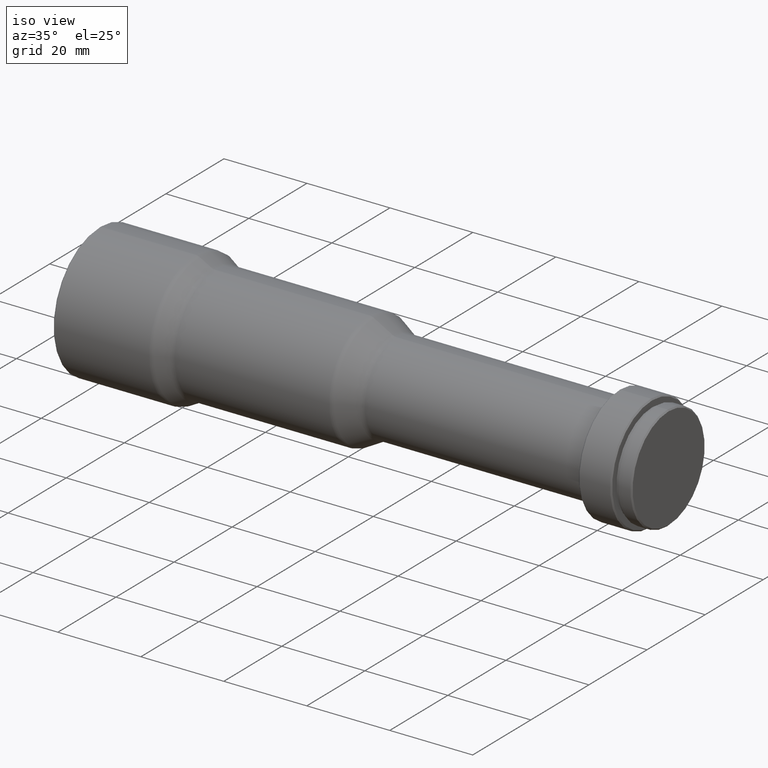
[diagram: clean part render]
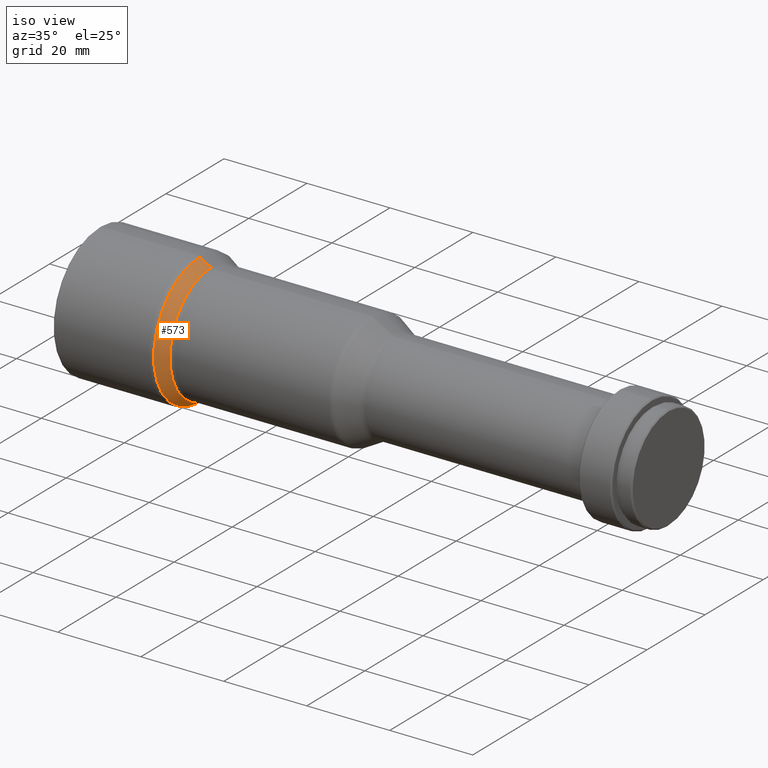
[diagram: same view with one face highlighted and labeled with its STEP entity id]
A machine part, iso view. The second image highlights one B-rep face of the part: STEP entity #573.
In plain terms, the highlighted conical surface has half-angle 28.393 deg.
Its self-contained STEP definition (entity closure, byte-faithful):
#5 = VECTOR ( 'NONE', #205, 1000.000000000000100 ) ;
#16 = DIRECTION ( 'NONE',  ( -1.000000000000000000, -0.0000000000000000000, -0.0000000000000000000 ) ) ;
#72 = LINE ( 'NONE', #634, #5 ) ;
#131 = AXIS2_PLACEMENT_3D ( 'NONE', #428, #330, #606 ) ;
#160 = DIRECTION ( 'NONE',  ( 0.0000000000000000000, 0.0000000000000000000, 1.000000000000000000 ) ) ;
#205 = DIRECTION ( 'NONE',  ( -0.8797065135761267300, 0.0000000000000000000, 0.4755170343654744900 ) ) ;
#250 = FACE_OUTER_BOUND ( 'NONE', #783, .T. ) ;
#274 = VECTOR ( 'NONE', #519, 1000.000000000000100 ) ;
#327 = CARTESIAN_POINT ( 'NONE',  ( 26.95491410023165800, 0.0000000000000000000, 0.0000000000000000000 ) ) ;
#329 = ORIENTED_EDGE ( 'NONE', *, *, #1021, .T. ) ;
#330 = DIRECTION ( 'NONE',  ( -1.000000000000000000, -0.0000000000000000000, -0.0000000000000000000 ) ) ;
#345 = EDGE_CURVE ( 'NONE', #371, #393, #708, .T. ) ;
#371 = VERTEX_POINT ( 'NONE', #926 ) ;
#393 = VERTEX_POINT ( 'NONE', #420 ) ;
#414 = CONICAL_SURFACE ( 'NONE', #131, 14.24058697284775100, 0.4955516734858291300 ) ;
#420 = CARTESIAN_POINT ( 'NONE',  ( 24.14508589976833600, 1.929971472014310800E-015, -15.75941302715225200 ) ) ;
#428 = CARTESIAN_POINT ( 'NONE',  ( 26.95491410023165800, 0.0000000000000000000, 0.0000000000000000000 ) ) ;
#470 = EDGE_CURVE ( 'NONE', #720, #782, #72, .T. ) ;
#505 = ORIENTED_EDGE ( 'NONE', *, *, #470, .T. ) ;
#508 = AXIS2_PLACEMENT_3D ( 'NONE', #838, #16, #1033 ) ;
#519 = DIRECTION ( 'NONE',  ( -0.8797065135761267300, 5.823404140757203100E-017, -0.4755170343654744900 ) ) ;
#573 = ADVANCED_FACE ( 'NONE', ( #250 ), #414, .T. ) ;
#598 = DIRECTION ( 'NONE',  ( -1.000000000000000000, -0.0000000000000000000, -0.0000000000000000000 ) ) ;
#606 = DIRECTION ( 'NONE',  ( 0.0000000000000000000, 0.0000000000000000000, 1.000000000000000000 ) ) ;
#634 = CARTESIAN_POINT ( 'NONE',  ( 26.95491410023165800, 0.0000000000000000000, 14.24058697284775100 ) ) ;
#648 = CIRCLE ( 'NONE', #508, 15.75941302715225200 ) ;
#705 = CIRCLE ( 'NONE', #747, 14.24058697284775100 ) ;
#708 = LINE ( 'NONE', #848, #274 ) ;
#720 = VERTEX_POINT ( 'NONE', #786 ) ;
#747 = AXIS2_PLACEMENT_3D ( 'NONE', #327, #598, #160 ) ;
#782 = VERTEX_POINT ( 'NONE', #792 ) ;
#783 = EDGE_LOOP ( 'NONE', ( #794, #329, #505, #918 ) ) ;
#786 = CARTESIAN_POINT ( 'NONE',  ( 26.95491410023165800, 0.0000000000000000000, 14.24058697284775100 ) ) ;
#792 = CARTESIAN_POINT ( 'NONE',  ( 24.14508589976833600, 0.0000000000000000000, 15.75941302715225200 ) ) ;
#794 = ORIENTED_EDGE ( 'NONE', *, *, #345, .F. ) ;
#838 = CARTESIAN_POINT ( 'NONE',  ( 24.14508589976833600, 0.0000000000000000000, 0.0000000000000000000 ) ) ;
#848 = CARTESIAN_POINT ( 'NONE',  ( 26.95491410023165800, 1.743968925427749400E-015, -14.24058697284775100 ) ) ;
#918 = ORIENTED_EDGE ( 'NONE', *, *, #1025, .F. ) ;
#926 = CARTESIAN_POINT ( 'NONE',  ( 26.95491410023165800, 1.743968925427749400E-015, -14.24058697284775100 ) ) ;
#1021 = EDGE_CURVE ( 'NONE', #371, #720, #705, .T. ) ;
#1025 = EDGE_CURVE ( 'NONE', #393, #782, #648, .T. ) ;
#1033 = DIRECTION ( 'NONE',  ( 0.0000000000000000000, 0.0000000000000000000, 1.000000000000000000 ) ) ;